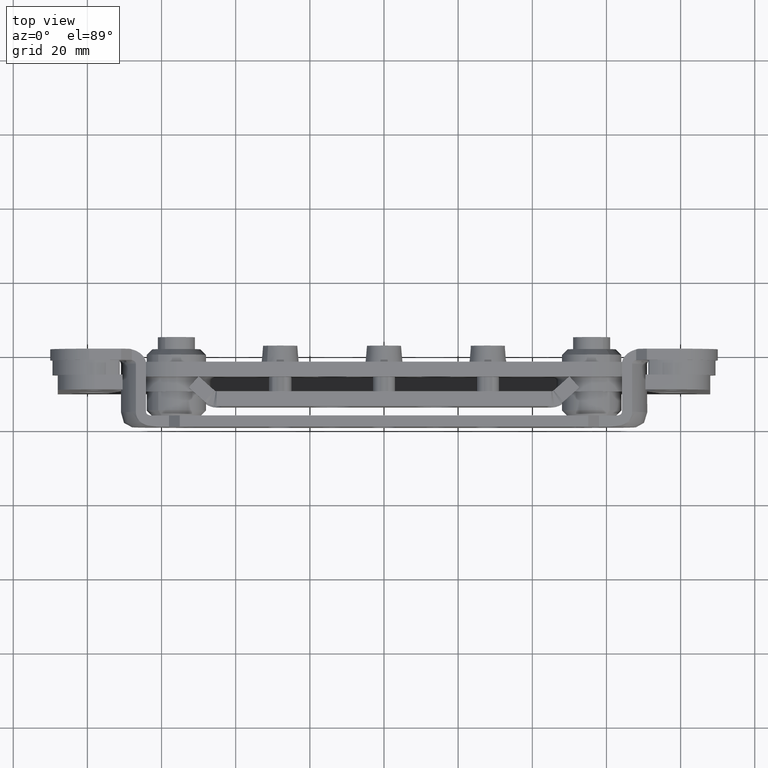
[diagram: clean part render]
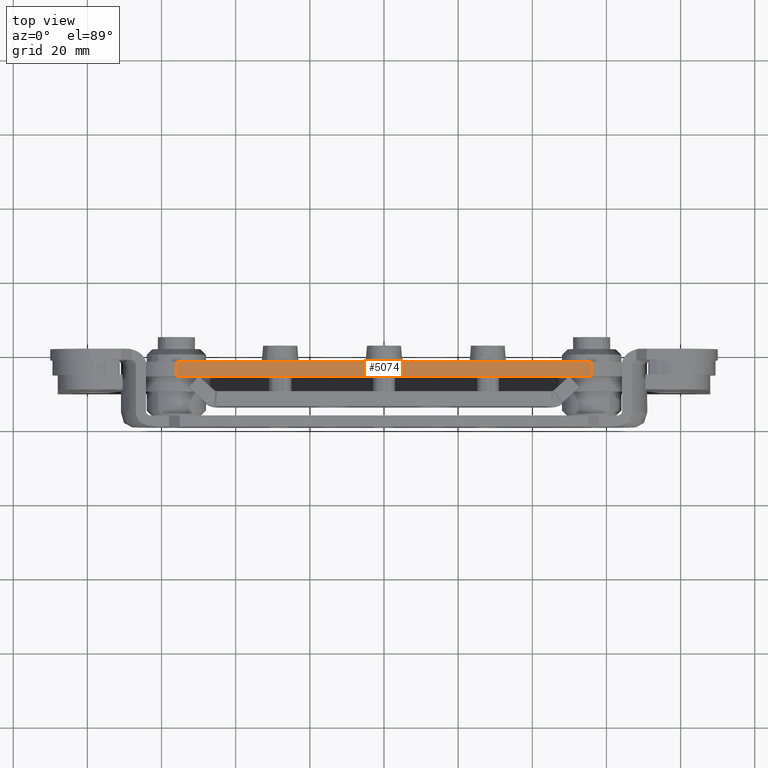
[diagram: same view with one face highlighted and labeled with its STEP entity id]
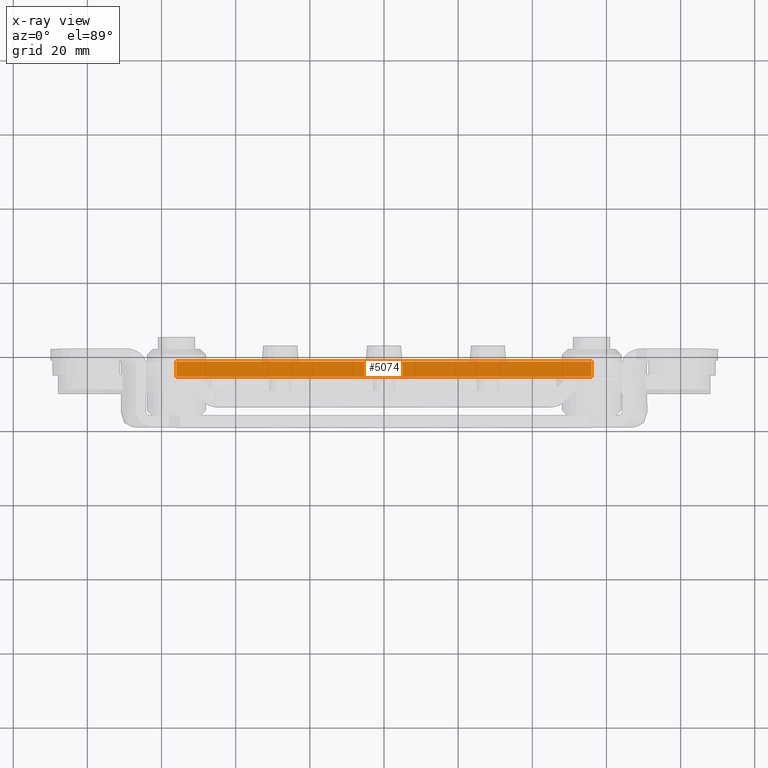
[diagram: x-ray of the same camera — body ghosted, the highlighted face saturated]
A machine part, top view. The second image highlights one B-rep face of the part: STEP entity #5074.
The next image is the same camera in x-ray: the body ghosted, the highlighted face saturated — about 0% of this face is hidden behind the body in this view.
In plain terms, the highlighted planar face has unit normal (-0, 0, -1).
Its self-contained STEP definition (entity closure, byte-faithful):
#130 = LINE ( 'NONE', #9244, #4975 ) ;
#734 = DIRECTION ( 'NONE',  ( 1.000000000000000000, 0.000000000000000000, -0.000000000000000000 ) ) ;
#834 = EDGE_CURVE ( 'NONE', #2323, #2907, #4809, .T. ) ;
#858 = EDGE_LOOP ( 'NONE', ( #11357, #6685, #7731, #3305 ) ) ;
#877 = VERTEX_POINT ( 'NONE', #11303 ) ;
#1632 = VERTEX_POINT ( 'NONE', #5333 ) ;
#2323 = VERTEX_POINT ( 'NONE', #9909 ) ;
#2674 = VECTOR ( 'NONE', #10528, 1000.000000000000000 ) ;
#2795 = DIRECTION ( 'NONE',  ( -0.000000000000000000, -1.000000000000000000, -0.000000000000000000 ) ) ;
#2907 = VERTEX_POINT ( 'NONE', #3154 ) ;
#3154 = CARTESIAN_POINT ( 'NONE',  ( 56.00000000000000711, 0.000000000000000000, -11.49999999999999822 ) ) ;
#3192 = LINE ( 'NONE', #6166, #2674 ) ;
#3305 = ORIENTED_EDGE ( 'NONE', *, *, #834, .T. ) ;
#3475 = LINE ( 'NONE', #10877, #9137 ) ;
#3654 = PLANE ( 'NONE',  #8178 ) ;
#3769 = FACE_OUTER_BOUND ( 'NONE', #858, .T. ) ;
#3849 = EDGE_CURVE ( 'NONE', #877, #1632, #3475, .T. ) ;
#4809 = LINE ( 'NONE', #8262, #11535 ) ;
#4975 = VECTOR ( 'NONE', #5733, 1000.000000000000000 ) ;
#5074 = ADVANCED_FACE ( 'NONE', ( #3769 ), #3654, .F. ) ;
#5333 = CARTESIAN_POINT ( 'NONE',  ( -56.00000000000000711, 0.000000000000000000, -11.49999999999999822 ) ) ;
#5363 = DIRECTION ( 'NONE',  ( 0.000000000000000000, 0.000000000000000000, 1.000000000000000000 ) ) ;
#5733 = DIRECTION ( 'NONE',  ( -1.000000000000000000, -0.000000000000000000, -0.000000000000000000 ) ) ;
#6141 = EDGE_CURVE ( 'NONE', #2907, #1632, #3192, .T. ) ;
#6166 = CARTESIAN_POINT ( 'NONE',  ( -56.00000000000000711, 0.000000000000000000, -11.49999999999999822 ) ) ;
#6685 = ORIENTED_EDGE ( 'NONE', *, *, #3849, .F. ) ;
#7282 = CARTESIAN_POINT ( 'NONE',  ( -56.00000000000000711, 4.000000000000000000, -11.49999999999999822 ) ) ;
#7731 = ORIENTED_EDGE ( 'NONE', *, *, #11623, .F. ) ;
#8178 = AXIS2_PLACEMENT_3D ( 'NONE', #7282, #5363, #734 ) ;
#8262 = CARTESIAN_POINT ( 'NONE',  ( 56.00000000000000711, 4.000000000000000000, -11.49999999999999822 ) ) ;
#9137 = VECTOR ( 'NONE', #2795, 1000.000000000000000 ) ;
#9172 = DIRECTION ( 'NONE',  ( -0.000000000000000000, -1.000000000000000000, -0.000000000000000000 ) ) ;
#9244 = CARTESIAN_POINT ( 'NONE',  ( -56.00000000000000711, 4.000000000000000000, -11.49999999999999822 ) ) ;
#9909 = CARTESIAN_POINT ( 'NONE',  ( 56.00000000000000711, 4.000000000000000000, -11.49999999999999822 ) ) ;
#10528 = DIRECTION ( 'NONE',  ( -1.000000000000000000, -0.000000000000000000, -0.000000000000000000 ) ) ;
#10877 = CARTESIAN_POINT ( 'NONE',  ( -56.00000000000000711, 4.000000000000000000, -11.49999999999999822 ) ) ;
#11303 = CARTESIAN_POINT ( 'NONE',  ( -56.00000000000000711, 4.000000000000000000, -11.49999999999999822 ) ) ;
#11357 = ORIENTED_EDGE ( 'NONE', *, *, #6141, .T. ) ;
#11535 = VECTOR ( 'NONE', #9172, 1000.000000000000000 ) ;
#11623 = EDGE_CURVE ( 'NONE', #2323, #877, #130, .T. ) ;